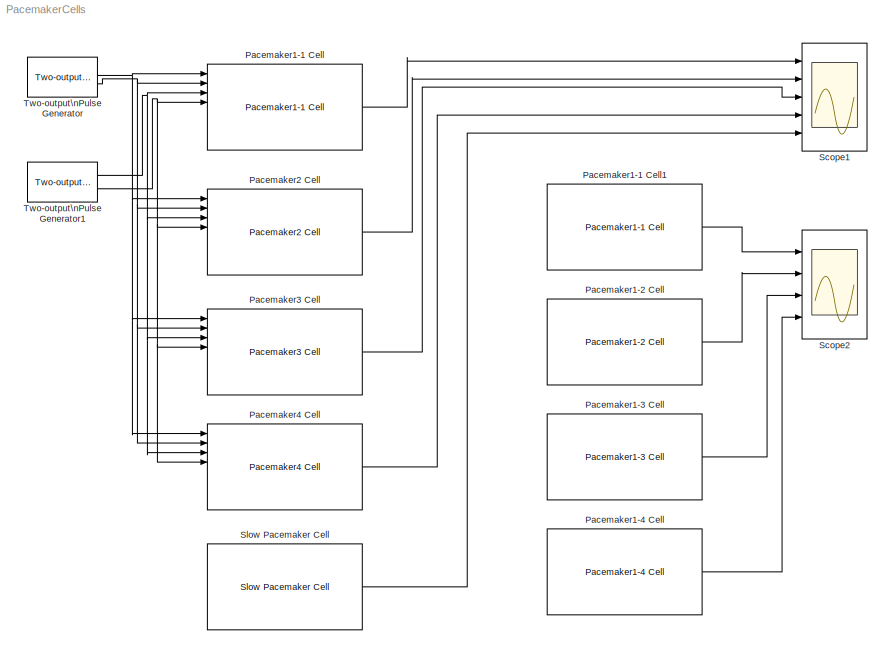
MODEL PacemakerCells
KIND model
BLOCK [Reference] Pacemaker1-1 Cell  REF=NeuroModelerLibrary/Pacemaker Cells/Pacemaker1-1 Cell
  FunctionWithSeparateData = off
  Ports = [8, 3]
  RTWMemSecDataConstants = Inherit from model
  RTWMemSecDataInternal = Inherit from model
  RTWMemSecDataParameters = Inherit from model
  RTWMemSecFuncExecute = Inherit from model
  RTWMemSecFuncInitTerm = Inherit from model
  ShowPortLabels = FromPortIcon
  SourceBlock = NeuroModelerLibrary/Pacemaker Cells/Pacemaker1-1 Cell
  SourceType = SubSystem
  SystemSampleTime = -1
BLOCK [Reference] Pacemaker1-1 Cell1  REF=NeuroModelerLibrary/Pacemaker Cells/Pacemaker1-1 Cell
  FunctionWithSeparateData = off
  Ports = [8, 3]
  RTWMemSecDataConstants = Inherit from model
  RTWMemSecDataInternal = Inherit from model
  RTWMemSecDataParameters = Inherit from model
  RTWMemSecFuncExecute = Inherit from model
  RTWMemSecFuncInitTerm = Inherit from model
  ShowPortLabels = FromPortIcon
  SourceBlock = NeuroModelerLibrary/Pacemaker Cells/Pacemaker1-1 Cell
  SourceType = SubSystem
  SystemSampleTime = -1
BLOCK [Reference] Pacemaker1-2 Cell  REF=NeuroModelerLibrary/Pacemaker Cells/Pacemaker1-2 Cell
  FunctionWithSeparateData = off
  Ports = [8, 3]
  RTWMemSecDataConstants = Inherit from model
  RTWMemSecDataInternal = Inherit from model
  RTWMemSecDataParameters = Inherit from model
  RTWMemSecFuncExecute = Inherit from model
  RTWMemSecFuncInitTerm = Inherit from model
  ShowPortLabels = FromPortIcon
  SourceBlock = NeuroModelerLibrary/Pacemaker Cells/Pacemaker1-2 Cell
  SourceType = SubSystem
  SystemSampleTime = -1
BLOCK [Reference] Pacemaker1-3 Cell  REF=NeuroModelerLibrary/Pacemaker Cells/Pacemaker1-3 Cell
  FunctionWithSeparateData = off
  Ports = [8, 3]
  RTWMemSecDataConstants = Inherit from model
  RTWMemSecDataInternal = Inherit from model
  RTWMemSecDataParameters = Inherit from model
  RTWMemSecFuncExecute = Inherit from model
  RTWMemSecFuncInitTerm = Inherit from model
  ShowPortLabels = FromPortIcon
  SourceBlock = NeuroModelerLibrary/Pacemaker Cells/Pacemaker1-3 Cell
  SourceType = SubSystem
  SystemSampleTime = -1
BLOCK [Reference] Pacemaker1-4 Cell  REF=NeuroModelerLibrary/Pacemaker Cells/Pacemaker1-4 Cell
  FunctionWithSeparateData = off
  Ports = [8, 3]
  RTWMemSecDataConstants = Inherit from model
  RTWMemSecDataInternal = Inherit from model
  RTWMemSecDataParameters = Inherit from model
  RTWMemSecFuncExecute = Inherit from model
  RTWMemSecFuncInitTerm = Inherit from model
  ShowPortLabels = FromPortIcon
  SourceBlock = NeuroModelerLibrary/Pacemaker Cells/Pacemaker1-4 Cell
  SourceType = SubSystem
  SystemSampleTime = -1
BLOCK [Reference] Pacemaker2 Cell  REF=NeuroModelerLibrary/Pacemaker Cells/Pacemaker2 Cell
  FunctionWithSeparateData = off
  Ports = [8, 3]
  RTWMemSecDataConstants = Inherit from model
  RTWMemSecDataInternal = Inherit from model
  RTWMemSecDataParameters = Inherit from model
  RTWMemSecFuncExecute = Inherit from model
  RTWMemSecFuncInitTerm = Inherit from model
  ShowPortLabels = FromPortIcon
  SourceBlock = NeuroModelerLibrary/Pacemaker Cells/Pacemaker2 Cell
  SourceType = SubSystem
  SystemSampleTime = -1
BLOCK [Reference] Pacemaker3 Cell  REF=NeuroModelerLibrary/Pacemaker Cells/Pacemaker3 Cell
  FunctionWithSeparateData = off
  Ports = [8, 3]
  RTWMemSecDataConstants = Inherit from model
  RTWMemSecDataInternal = Inherit from model
  RTWMemSecDataParameters = Inherit from model
  RTWMemSecFuncExecute = Inherit from model
  RTWMemSecFuncInitTerm = Inherit from model
  ShowPortLabels = FromPortIcon
  SourceBlock = NeuroModelerLibrary/Pacemaker Cells/Pacemaker3 Cell
  SourceType = SubSystem
  SystemSampleTime = -1
BLOCK [Reference] Pacemaker4 Cell  REF=NeuroModelerLibrary/Pacemaker Cells/Pacemaker4 Cell
  FunctionWithSeparateData = off
  Ports = [8, 3]
  RTWMemSecDataConstants = Inherit from model
  RTWMemSecDataInternal = Inherit from model
  RTWMemSecDataParameters = Inherit from model
  RTWMemSecFuncExecute = Inherit from model
  RTWMemSecFuncInitTerm = Inherit from model
  ShowPortLabels = FromPortIcon
  SourceBlock = NeuroModelerLibrary/Pacemaker Cells/Pacemaker4 Cell
  SourceType = SubSystem
  SystemSampleTime = -1
BLOCK [Scope] Scope1
  DataFormat = StructureWithTime
  Floating = off
  MaxDataPoints = 5000000
  NumInputPorts = 5
  Ports = [5]
  SampleTime = 0
  YMax = 1~1~1~1~1
  YMin = -0.25~-0.25~-0.25~-0.25~-0.25
  ZoomMode = xonly
BLOCK [Scope] Scope2
  DataFormat = StructureWithTime
  Floating = off
  MaxDataPoints = 5000000
  NumInputPorts = 4
  Ports = [4]
  SampleTime = 0
  SaveName = ScopeData1
  YMax = 1~1~1~1
  YMin = -0.25~-0.25~-0.25~-0.25
  ZoomMode = xonly
BLOCK [Reference] Slow Pacemaker Cell  REF=NeuroModelerLibrary/Pacemaker Cells/Slow Pacemaker Cell
  FunctionWithSeparateData = off
  Ports = [8, 3]
  RTWMemSecDataConstants = Inherit from model
  RTWMemSecDataInternal = Inherit from model
  RTWMemSecDataParameters = Inherit from model
  RTWMemSecFuncExecute = Inherit from model
  RTWMemSecFuncInitTerm = Inherit from model
  ShowPortLabels = FromPortIcon
  SourceBlock = NeuroModelerLibrary/Pacemaker Cells/Slow Pacemaker Cell
  SourceType = SubSystem
  SystemSampleTime = -1
BLOCK [Reference] Two-output\nPulse Generator  REF=NeuroModelerLibrary/Support/Two-output\nPulse Generator
  A = 1
  FunctionWithSeparateData = off
  OOff1 = 0.6
  OOff2 = 1.2
  OOn1 = 10.5
  OOn2 = 10.1
  P1 = 200
  P2 = 200
  PW = 1
  Ports = [0, 2]
  RTWMemSecDataConstants = Inherit from model
  RTWMemSecDataInternal = Inherit from model
  RTWMemSecDataParameters = Inherit from model
  RTWMemSecFuncExecute = Inherit from model
  RTWMemSecFuncInitTerm = Inherit from model
  ST = 0.001
  ShowPortLabels = FromPortIcon
  SourceBlock = NeuroModelerLibrary/Support/Two-output\nPulse Generator
  SystemSampleTime = -1
BLOCK [Reference] Two-output\nPulse Generator1  REF=NeuroModelerLibrary/Support/Two-output\nPulse Generator
  A = 1
  FunctionWithSeparateData = off
  OOff1 = 0.6
  OOff2 = 1.2
  OOn1 = 10.5
  OOn2 = 11.1
  P1 = 200
  P2 = 200
  PW = 1
  Ports = [0, 2]
  RTWMemSecDataConstants = Inherit from model
  RTWMemSecDataInternal = Inherit from model
  RTWMemSecDataParameters = Inherit from model
  RTWMemSecFuncExecute = Inherit from model
  RTWMemSecFuncInitTerm = Inherit from model
  ST = 0.001
  ShowPortLabels = FromPortIcon
  SourceBlock = NeuroModelerLibrary/Support/Two-output\nPulse Generator
  SystemSampleTime = -1
LINE Pacemaker1-1 Cell1:2 -> Scope2:1
LINE Pacemaker1-1 Cell:2 -> Scope1:1
LINE Pacemaker1-2 Cell:2 -> Scope2:2
LINE Pacemaker1-3 Cell:2 -> Scope2:3
LINE Pacemaker1-4 Cell:2 -> Scope2:4
LINE Pacemaker2 Cell:2 -> Scope1:2
LINE Pacemaker3 Cell:2 -> Scope1:3
LINE Pacemaker4 Cell:2 -> Scope1:4
LINE Slow Pacemaker Cell:2 -> Scope1:5
NET Two-output\nPulse Generator1:1 -> Pacemaker1-1 Cell:3, Pacemaker2 Cell:3, Pacemaker3 Cell:3, Pacemaker4 Cell:3
NET Two-output\nPulse Generator1:2 -> Pacemaker1-1 Cell:4, Pacemaker2 Cell:4, Pacemaker3 Cell:4, Pacemaker4 Cell:4
NET Two-output\nPulse Generator:1 -> Pacemaker1-1 Cell:1, Pacemaker2 Cell:1, Pacemaker3 Cell:1, Pacemaker4 Cell:1
NET Two-output\nPulse Generator:2 -> Pacemaker1-1 Cell:2, Pacemaker2 Cell:2, Pacemaker3 Cell:2, Pacemaker4 Cell:2
note: NET lines group one-source signal fan-out (src -> all destinations, sorted); 1:1 wires keep LINE
